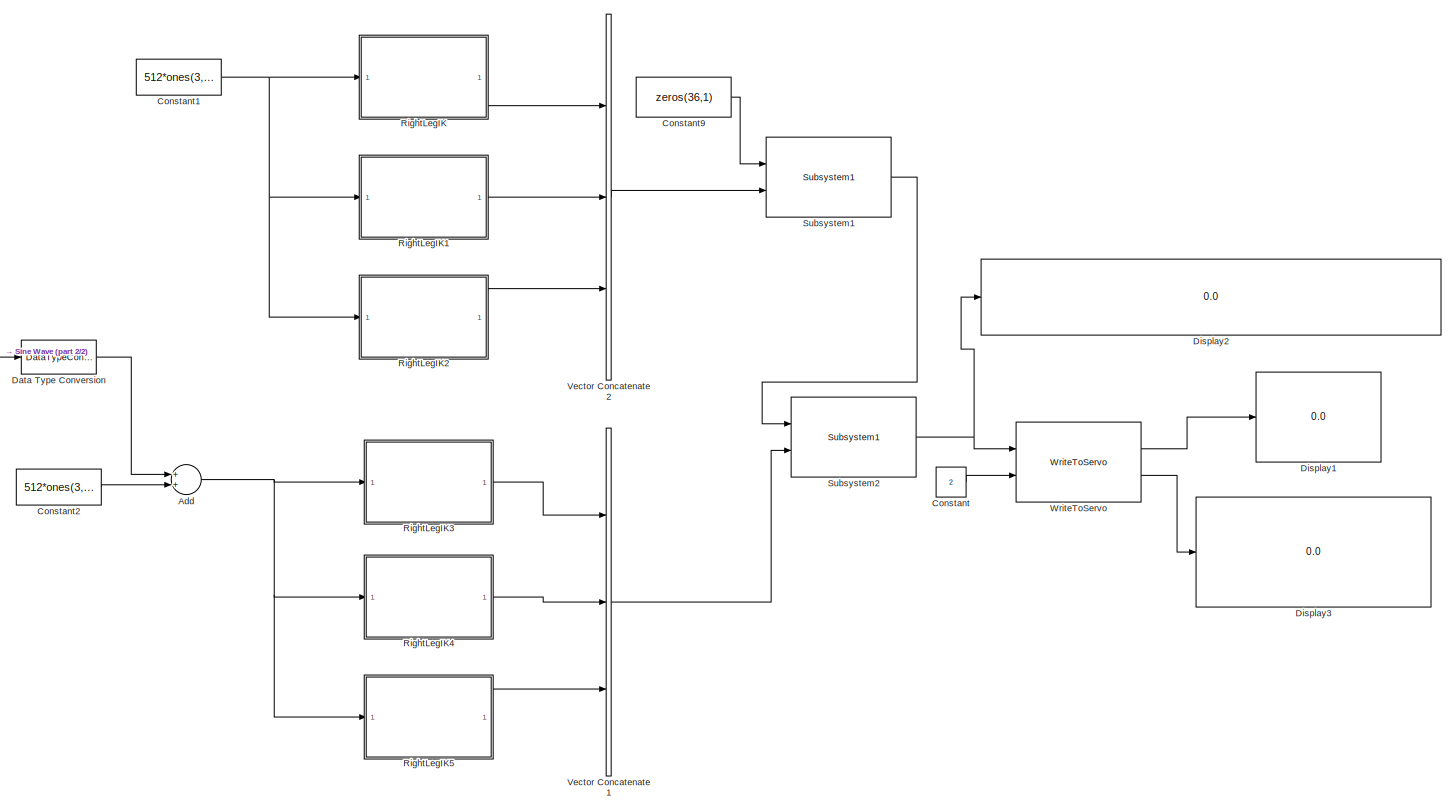
[diagram: root canvas - part 1/2, most of the canvas]
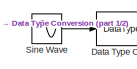
[diagram: root canvas - part 2/2, middle left region]
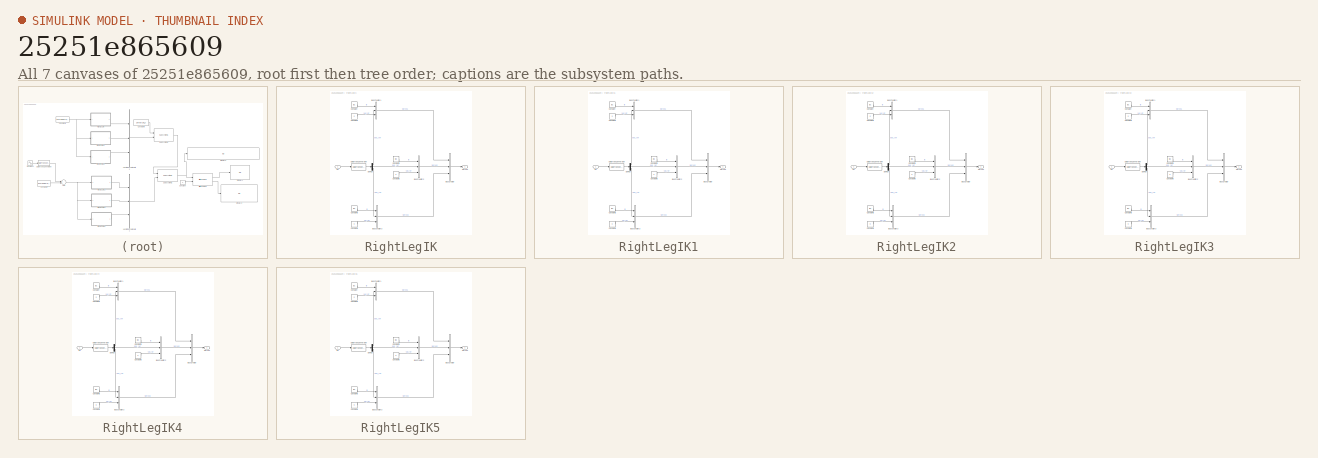
[diagram: thumbnail index - all 7 canvases of the model, root first then tree order]
MODEL slx_25251e865609
KIND model
BLOCK [Sum] Add
  InputSameDT = off
  OutDataTypeStr = Inherit: Inherit via internal rule
  Ports = [2, 1]
  SaturateOnIntegerOverflow = off
BLOCK [Constant] Constant
  OutDataTypeStr = uint8
  Value = 2
BLOCK [Constant] Constant1
  OutDataTypeStr = uint16
  SampleTime = -1
  Value = 512*ones(3,1)
BLOCK [Constant] Constant2
  OutDataTypeStr = uint16
  SampleTime = -1
  Value = 512*ones(3,1)
BLOCK [Constant] Constant9
  OutDataTypeStr = uint8
  SampleTime = -1
  Value = zeros(36,1)
BLOCK [DataTypeConversion] Data Type Conversion
  OutDataTypeStr = uint16
  RndMeth = Floor
  SaturateOnIntegerOverflow = off
BLOCK [Display] Display1
  Decimation = 1
  Format = hex (Stored Integer)
  Ports = [1]
BLOCK [Display] Display2
  Decimation = 1
  Format = hex (Stored Integer)
  Ports = [1]
BLOCK [Display] Display3
  Decimation = 1
  Format = hex (Stored Integer)
  Ports = [1]
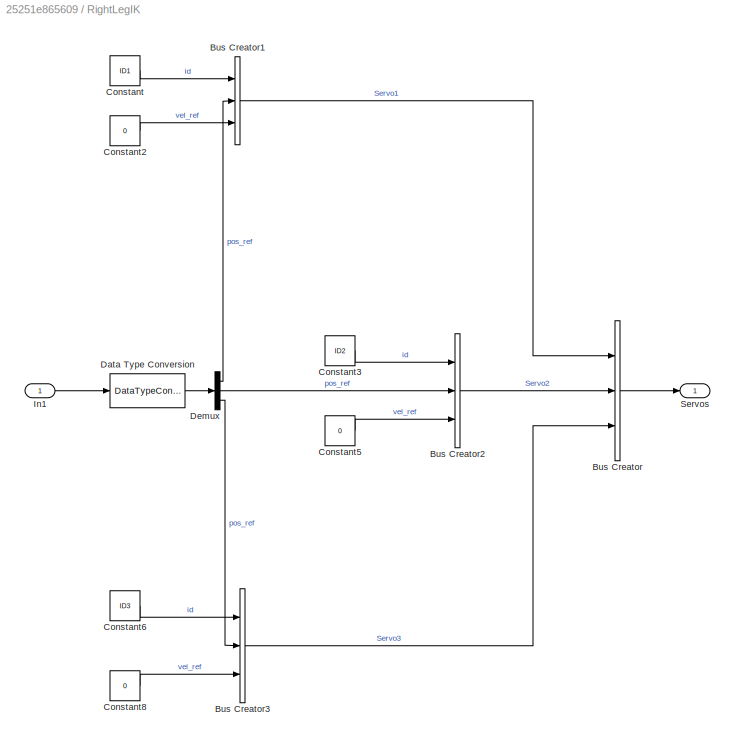
BLOCK [SubSystem] RightLegIK
  Ports = [1, 1]
  RTWFcnName = RightLegIK
  RTWFcnNameOpts = User specified
  RTWSystemCode = Reusable function
  RequestExecContextInheritance = off
  TreatAsAtomicUnit = on
BLOCK [BusCreator] RightLegIK/Bus Creator
  DisplayOption = bar
  InheritFromInputs = off
  Inputs = 3
  NonVirtualBus = on
  OutDataTypeStr = Bus: Leg_ref
  Ports = [3, 1]
BLOCK [BusCreator] RightLegIK/Bus Creator1
  DisplayOption = bar
  InheritFromInputs = off
  Inputs = 3
  NonVirtualBus = on
  OutDataTypeStr = Bus: Servo
  Ports = [3, 1]
BLOCK [BusCreator] RightLegIK/Bus Creator2
  DisplayOption = bar
  InheritFromInputs = off
  Inputs = 3
  NonVirtualBus = on
  OutDataTypeStr = Bus: Servo
  Ports = [3, 1]
BLOCK [BusCreator] RightLegIK/Bus Creator3
  DisplayOption = bar
  InheritFromInputs = off
  Inputs = 3
  NonVirtualBus = on
  OutDataTypeStr = Bus: Servo
  Ports = [3, 1]
BLOCK [Constant] RightLegIK/Constant
  OutDataTypeStr = uint8
  SampleTime = -1
  Value = ID1
BLOCK [Constant] RightLegIK/Constant2
  OutDataTypeStr = uint16
  SampleTime = -1
  Value = 0
BLOCK [Constant] RightLegIK/Constant3
  OutDataTypeStr = uint8
  SampleTime = -1
  Value = ID2
BLOCK [Constant] RightLegIK/Constant5
  OutDataTypeStr = uint16
  SampleTime = -1
  Value = 0
BLOCK [Constant] RightLegIK/Constant6
  OutDataTypeStr = uint8
  SampleTime = -1
  Value = ID3
BLOCK [Constant] RightLegIK/Constant8
  OutDataTypeStr = uint16
  SampleTime = -1
  Value = 0
BLOCK [DataTypeConversion] RightLegIK/Data Type Conversion
  OutDataTypeStr = uint16
  RndMeth = Floor
  SaturateOnIntegerOverflow = off
BLOCK [Demux] RightLegIK/Demux
  DisplayOption = bar
  Outputs = 3
  Ports = [1, 3]
BLOCK [Inport] RightLegIK/In1
  IconDisplay = Port number
BLOCK [Outport] RightLegIK/Servos
  IconDisplay = Port number
  OutDataTypeStr = Bus: Leg_ref
  PortDimensions = 3
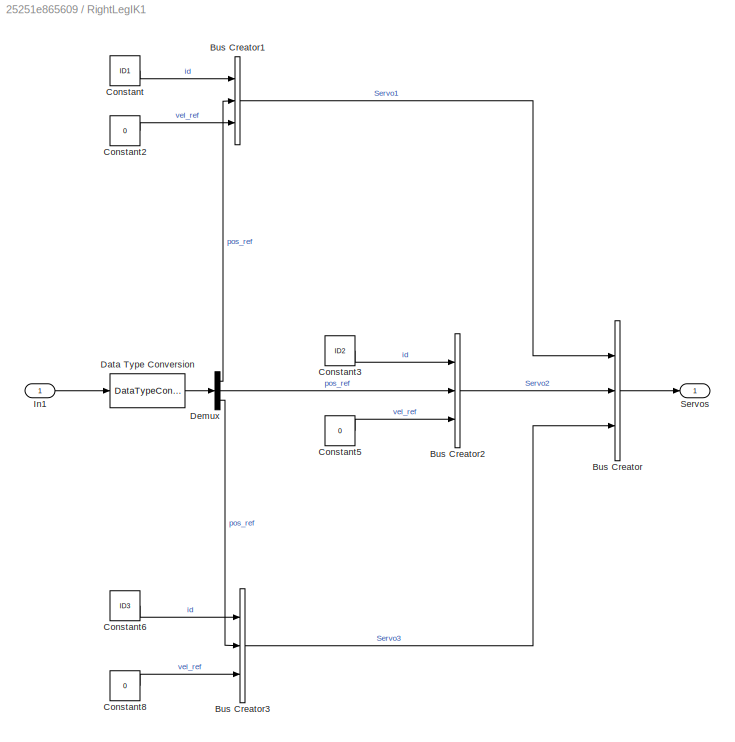
BLOCK [SubSystem] RightLegIK1
  Ports = [1, 1]
  RTWFcnName = RightLegIK
  RTWFcnNameOpts = User specified
  RTWSystemCode = Reusable function
  RequestExecContextInheritance = off
  TreatAsAtomicUnit = on
BLOCK [BusCreator] RightLegIK1/Bus Creator
  DisplayOption = bar
  InheritFromInputs = off
  Inputs = 3
  NonVirtualBus = on
  OutDataTypeStr = Bus: Leg_ref
  Ports = [3, 1]
BLOCK [BusCreator] RightLegIK1/Bus Creator1
  DisplayOption = bar
  InheritFromInputs = off
  Inputs = 3
  NonVirtualBus = on
  OutDataTypeStr = Bus: Servo
  Ports = [3, 1]
BLOCK [BusCreator] RightLegIK1/Bus Creator2
  DisplayOption = bar
  InheritFromInputs = off
  Inputs = 3
  NonVirtualBus = on
  OutDataTypeStr = Bus: Servo
  Ports = [3, 1]
BLOCK [BusCreator] RightLegIK1/Bus Creator3
  DisplayOption = bar
  InheritFromInputs = off
  Inputs = 3
  NonVirtualBus = on
  OutDataTypeStr = Bus: Servo
  Ports = [3, 1]
BLOCK [Constant] RightLegIK1/Constant
  OutDataTypeStr = uint8
  SampleTime = -1
  Value = ID1
BLOCK [Constant] RightLegIK1/Constant2
  OutDataTypeStr = uint16
  SampleTime = -1
  Value = 0
BLOCK [Constant] RightLegIK1/Constant3
  OutDataTypeStr = uint8
  SampleTime = -1
  Value = ID2
BLOCK [Constant] RightLegIK1/Constant5
  OutDataTypeStr = uint16
  SampleTime = -1
  Value = 0
BLOCK [Constant] RightLegIK1/Constant6
  OutDataTypeStr = uint8
  SampleTime = -1
  Value = ID3
BLOCK [Constant] RightLegIK1/Constant8
  OutDataTypeStr = uint16
  SampleTime = -1
  Value = 0
BLOCK [DataTypeConversion] RightLegIK1/Data Type Conversion
  OutDataTypeStr = uint16
  RndMeth = Floor
  SaturateOnIntegerOverflow = off
BLOCK [Demux] RightLegIK1/Demux
  DisplayOption = bar
  Outputs = 3
  Ports = [1, 3]
BLOCK [Inport] RightLegIK1/In1
  IconDisplay = Port number
BLOCK [Outport] RightLegIK1/Servos
  IconDisplay = Port number
  OutDataTypeStr = Bus: Leg_ref
  PortDimensions = 3
BLOCK [SubSystem] RightLegIK2
  Ports = [1, 1]
  RTWFcnName = RightLegIK
  RTWFcnNameOpts = User specified
  RTWSystemCode = Reusable function
  RequestExecContextInheritance = off
  TreatAsAtomicUnit = on
BLOCK [BusCreator] RightLegIK2/Bus Creator
  DisplayOption = bar
  InheritFromInputs = off
  Inputs = 3
  NonVirtualBus = on
  OutDataTypeStr = Bus: Leg_ref
  Ports = [3, 1]
BLOCK [BusCreator] RightLegIK2/Bus Creator1
  DisplayOption = bar
  InheritFromInputs = off
  Inputs = 3
  NonVirtualBus = on
  OutDataTypeStr = Bus: Servo
  Ports = [3, 1]
BLOCK [BusCreator] RightLegIK2/Bus Creator2
  DisplayOption = bar
  InheritFromInputs = off
  Inputs = 3
  NonVirtualBus = on
  OutDataTypeStr = Bus: Servo
  Ports = [3, 1]
BLOCK [BusCreator] RightLegIK2/Bus Creator3
  DisplayOption = bar
  InheritFromInputs = off
  Inputs = 3
  NonVirtualBus = on
  OutDataTypeStr = Bus: Servo
  Ports = [3, 1]
BLOCK [Constant] RightLegIK2/Constant
  OutDataTypeStr = uint8
  SampleTime = -1
  Value = ID1
BLOCK [Constant] RightLegIK2/Constant2
  OutDataTypeStr = uint16
  SampleTime = -1
  Value = 0
BLOCK [Constant] RightLegIK2/Constant3
  OutDataTypeStr = uint8
  SampleTime = -1
  Value = ID2
BLOCK [Constant] RightLegIK2/Constant5
  OutDataTypeStr = uint16
  SampleTime = -1
  Value = 0
BLOCK [Constant] RightLegIK2/Constant6
  OutDataTypeStr = uint8
  SampleTime = -1
  Value = ID3
BLOCK [Constant] RightLegIK2/Constant8
  OutDataTypeStr = uint16
  SampleTime = -1
  Value = 0
BLOCK [DataTypeConversion] RightLegIK2/Data Type Conversion
  OutDataTypeStr = uint16
  RndMeth = Floor
  SaturateOnIntegerOverflow = off
BLOCK [Demux] RightLegIK2/Demux
  DisplayOption = bar
  Outputs = 3
  Ports = [1, 3]
BLOCK [Inport] RightLegIK2/In1
  IconDisplay = Port number
BLOCK [Outport] RightLegIK2/Servos
  IconDisplay = Port number
  OutDataTypeStr = Bus: Leg_ref
  PortDimensions = 3
BLOCK [SubSystem] RightLegIK3
  Ports = [1, 1]
  RTWFcnName = RightLegIK
  RTWFcnNameOpts = User specified
  RTWSystemCode = Reusable function
  RequestExecContextInheritance = off
  TreatAsAtomicUnit = on
BLOCK [BusCreator] RightLegIK3/Bus Creator
  DisplayOption = bar
  InheritFromInputs = off
  Inputs = 3
  NonVirtualBus = on
  OutDataTypeStr = Bus: Leg_ref
  Ports = [3, 1]
BLOCK [BusCreator] RightLegIK3/Bus Creator1
  DisplayOption = bar
  InheritFromInputs = off
  Inputs = 3
  NonVirtualBus = on
  OutDataTypeStr = Bus: Servo
  Ports = [3, 1]
BLOCK [BusCreator] RightLegIK3/Bus Creator2
  DisplayOption = bar
  InheritFromInputs = off
  Inputs = 3
  NonVirtualBus = on
  OutDataTypeStr = Bus: Servo
  Ports = [3, 1]
BLOCK [BusCreator] RightLegIK3/Bus Creator3
  DisplayOption = bar
  InheritFromInputs = off
  Inputs = 3
  NonVirtualBus = on
  OutDataTypeStr = Bus: Servo
  Ports = [3, 1]
BLOCK [Constant] RightLegIK3/Constant
  OutDataTypeStr = uint8
  SampleTime = -1
  Value = ID1
BLOCK [Constant] RightLegIK3/Constant2
  OutDataTypeStr = uint16
  SampleTime = -1
  Value = 0
BLOCK [Constant] RightLegIK3/Constant3
  OutDataTypeStr = uint8
  SampleTime = -1
  Value = ID2
BLOCK [Constant] RightLegIK3/Constant5
  OutDataTypeStr = uint16
  SampleTime = -1
  Value = 0
BLOCK [Constant] RightLegIK3/Constant6
  OutDataTypeStr = uint8
  SampleTime = -1
  Value = ID3
BLOCK [Constant] RightLegIK3/Constant8
  OutDataTypeStr = uint16
  SampleTime = -1
  Value = 0
BLOCK [DataTypeConversion] RightLegIK3/Data Type Conversion
  OutDataTypeStr = uint16
  RndMeth = Floor
  SaturateOnIntegerOverflow = off
BLOCK [Demux] RightLegIK3/Demux
  DisplayOption = bar
  Outputs = 3
  Ports = [1, 3]
BLOCK [Inport] RightLegIK3/In1
  IconDisplay = Port number
BLOCK [Outport] RightLegIK3/Servos
  IconDisplay = Port number
  OutDataTypeStr = Bus: Leg_ref
  PortDimensions = 3
BLOCK [SubSystem] RightLegIK4
  Ports = [1, 1]
  RTWFcnName = RightLegIK
  RTWFcnNameOpts = User specified
  RTWSystemCode = Reusable function
  RequestExecContextInheritance = off
  TreatAsAtomicUnit = on
BLOCK [BusCreator] RightLegIK4/Bus Creator
  DisplayOption = bar
  InheritFromInputs = off
  Inputs = 3
  NonVirtualBus = on
  OutDataTypeStr = Bus: Leg_ref
  Ports = [3, 1]
BLOCK [BusCreator] RightLegIK4/Bus Creator1
  DisplayOption = bar
  InheritFromInputs = off
  Inputs = 3
  NonVirtualBus = on
  OutDataTypeStr = Bus: Servo
  Ports = [3, 1]
BLOCK [BusCreator] RightLegIK4/Bus Creator2
  DisplayOption = bar
  InheritFromInputs = off
  Inputs = 3
  NonVirtualBus = on
  OutDataTypeStr = Bus: Servo
  Ports = [3, 1]
BLOCK [BusCreator] RightLegIK4/Bus Creator3
  DisplayOption = bar
  InheritFromInputs = off
  Inputs = 3
  NonVirtualBus = on
  OutDataTypeStr = Bus: Servo
  Ports = [3, 1]
BLOCK [Constant] RightLegIK4/Constant
  OutDataTypeStr = uint8
  SampleTime = -1
  Value = ID1
BLOCK [Constant] RightLegIK4/Constant2
  OutDataTypeStr = uint16
  SampleTime = -1
  Value = 0
BLOCK [Constant] RightLegIK4/Constant3
  OutDataTypeStr = uint8
  SampleTime = -1
  Value = ID2
BLOCK [Constant] RightLegIK4/Constant5
  OutDataTypeStr = uint16
  SampleTime = -1
  Value = 0
BLOCK [Constant] RightLegIK4/Constant6
  OutDataTypeStr = uint8
  SampleTime = -1
  Value = ID3
BLOCK [Constant] RightLegIK4/Constant8
  OutDataTypeStr = uint16
  SampleTime = -1
  Value = 0
BLOCK [DataTypeConversion] RightLegIK4/Data Type Conversion
  OutDataTypeStr = uint16
  RndMeth = Floor
  SaturateOnIntegerOverflow = off
BLOCK [Demux] RightLegIK4/Demux
  DisplayOption = bar
  Outputs = 3
  Ports = [1, 3]
BLOCK [Inport] RightLegIK4/In1
  IconDisplay = Port number
BLOCK [Outport] RightLegIK4/Servos
  IconDisplay = Port number
  OutDataTypeStr = Bus: Leg_ref
  PortDimensions = 3
BLOCK [SubSystem] RightLegIK5
  Ports = [1, 1]
  RTWFcnName = RightLegIK
  RTWFcnNameOpts = User specified
  RTWSystemCode = Reusable function
  RequestExecContextInheritance = off
  TreatAsAtomicUnit = on
BLOCK [BusCreator] RightLegIK5/Bus Creator
  DisplayOption = bar
  InheritFromInputs = off
  Inputs = 3
  NonVirtualBus = on
  OutDataTypeStr = Bus: Leg_ref
  Ports = [3, 1]
BLOCK [BusCreator] RightLegIK5/Bus Creator1
  DisplayOption = bar
  InheritFromInputs = off
  Inputs = 3
  NonVirtualBus = on
  OutDataTypeStr = Bus: Servo
  Ports = [3, 1]
BLOCK [BusCreator] RightLegIK5/Bus Creator2
  DisplayOption = bar
  InheritFromInputs = off
  Inputs = 3
  NonVirtualBus = on
  OutDataTypeStr = Bus: Servo
  Ports = [3, 1]
BLOCK [BusCreator] RightLegIK5/Bus Creator3
  DisplayOption = bar
  InheritFromInputs = off
  Inputs = 3
  NonVirtualBus = on
  OutDataTypeStr = Bus: Servo
  Ports = [3, 1]
BLOCK [Constant] RightLegIK5/Constant
  OutDataTypeStr = uint8
  SampleTime = -1
  Value = ID1
BLOCK [Constant] RightLegIK5/Constant2
  OutDataTypeStr = uint16
  SampleTime = -1
  Value = 0
BLOCK [Constant] RightLegIK5/Constant3
  OutDataTypeStr = uint8
  SampleTime = -1
  Value = ID2
BLOCK [Constant] RightLegIK5/Constant5
  OutDataTypeStr = uint16
  SampleTime = -1
  Value = 0
BLOCK [Constant] RightLegIK5/Constant6
  OutDataTypeStr = uint8
  SampleTime = -1
  Value = ID3
BLOCK [Constant] RightLegIK5/Constant8
  OutDataTypeStr = uint16
  SampleTime = -1
  Value = 0
BLOCK [DataTypeConversion] RightLegIK5/Data Type Conversion
  OutDataTypeStr = uint16
  RndMeth = Floor
  SaturateOnIntegerOverflow = off
BLOCK [Demux] RightLegIK5/Demux
  DisplayOption = bar
  Outputs = 3
  Ports = [1, 3]
BLOCK [Inport] RightLegIK5/In1
  IconDisplay = Port number
BLOCK [Outport] RightLegIK5/Servos
  IconDisplay = Port number
  OutDataTypeStr = Bus: Leg_ref
  PortDimensions = 3
BLOCK [Sin] Sine Wave
  Amplitude = 100
  Frequency = 3
  Ports = [0, 1]
  SampleTime = 0.05
BLOCK [Reference] Subsystem1  REF=ServoCommand/Subsystem1
  Ports = [2, 1]
  SourceBlock = ServoCommand/Subsystem1
  SourceType = SubSystem
BLOCK [Reference] Subsystem2  REF=ServoCommand/Subsystem1
  Ports = [2, 1]
  SourceBlock = ServoCommand/Subsystem1
  SourceType = SubSystem
BLOCK [Concatenate] Vector Concatenate1
  ConcatenateDimension = 2
  NumInputs = 3
  Ports = [3, 1]
BLOCK [Concatenate] Vector Concatenate2
  ConcatenateDimension = 2
  NumInputs = 3
  Ports = [3, 1]
BLOCK [Reference] WriteToServo  REF=BeagleBoneBlackCom/WriteToServo
  Ports = [2, 2]
  SourceBlock = BeagleBoneBlackCom/WriteToServo
  SourceType = SubSystem
NET Add:1 -> RightLegIK3:1, RightLegIK4:1, RightLegIK5:1
NET Constant1:1 -> RightLegIK1:1, RightLegIK2:1, RightLegIK:1
LINE Constant2:1 -> Add:2
LINE Constant9:1 -> Subsystem1:1
LINE Constant:1 -> WriteToServo:2
LINE Data Type Conversion:1 -> Add:1
LINE RightLegIK/Bus Creator1:1 -> RightLegIK/Bus Creator:1
LINE RightLegIK/Bus Creator2:1 -> RightLegIK/Bus Creator:2
LINE RightLegIK/Bus Creator3:1 -> RightLegIK/Bus Creator:3
LINE RightLegIK/Bus Creator:1 -> RightLegIK/Servos:1
LINE RightLegIK/Constant2:1 -> RightLegIK/Bus Creator1:3
LINE RightLegIK/Constant3:1 -> RightLegIK/Bus Creator2:1
LINE RightLegIK/Constant5:1 -> RightLegIK/Bus Creator2:3
LINE RightLegIK/Constant6:1 -> RightLegIK/Bus Creator3:1
LINE RightLegIK/Constant8:1 -> RightLegIK/Bus Creator3:3
LINE RightLegIK/Constant:1 -> RightLegIK/Bus Creator1:1
LINE RightLegIK/Data Type Conversion:1 -> RightLegIK/Demux:1
LINE RightLegIK/Demux:1 -> RightLegIK/Bus Creator1:2
LINE RightLegIK/Demux:2 -> RightLegIK/Bus Creator2:2
LINE RightLegIK/Demux:3 -> RightLegIK/Bus Creator3:2
LINE RightLegIK/In1:1 -> RightLegIK/Data Type Conversion:1
LINE RightLegIK1/Bus Creator1:1 -> RightLegIK1/Bus Creator:1
LINE RightLegIK1/Bus Creator2:1 -> RightLegIK1/Bus Creator:2
LINE RightLegIK1/Bus Creator3:1 -> RightLegIK1/Bus Creator:3
LINE RightLegIK1/Bus Creator:1 -> RightLegIK1/Servos:1
LINE RightLegIK1/Constant2:1 -> RightLegIK1/Bus Creator1:3
LINE RightLegIK1/Constant3:1 -> RightLegIK1/Bus Creator2:1
LINE RightLegIK1/Constant5:1 -> RightLegIK1/Bus Creator2:3
LINE RightLegIK1/Constant6:1 -> RightLegIK1/Bus Creator3:1
LINE RightLegIK1/Constant8:1 -> RightLegIK1/Bus Creator3:3
LINE RightLegIK1/Constant:1 -> RightLegIK1/Bus Creator1:1
LINE RightLegIK1/Data Type Conversion:1 -> RightLegIK1/Demux:1
LINE RightLegIK1/Demux:1 -> RightLegIK1/Bus Creator1:2
LINE RightLegIK1/Demux:2 -> RightLegIK1/Bus Creator2:2
LINE RightLegIK1/Demux:3 -> RightLegIK1/Bus Creator3:2
LINE RightLegIK1/In1:1 -> RightLegIK1/Data Type Conversion:1
LINE RightLegIK1:1 -> Vector Concatenate2:2
LINE RightLegIK2/Bus Creator1:1 -> RightLegIK2/Bus Creator:1
LINE RightLegIK2/Bus Creator2:1 -> RightLegIK2/Bus Creator:2
LINE RightLegIK2/Bus Creator3:1 -> RightLegIK2/Bus Creator:3
LINE RightLegIK2/Bus Creator:1 -> RightLegIK2/Servos:1
LINE RightLegIK2/Constant2:1 -> RightLegIK2/Bus Creator1:3
LINE RightLegIK2/Constant3:1 -> RightLegIK2/Bus Creator2:1
LINE RightLegIK2/Constant5:1 -> RightLegIK2/Bus Creator2:3
LINE RightLegIK2/Constant6:1 -> RightLegIK2/Bus Creator3:1
LINE RightLegIK2/Constant8:1 -> RightLegIK2/Bus Creator3:3
LINE RightLegIK2/Constant:1 -> RightLegIK2/Bus Creator1:1
LINE RightLegIK2/Data Type Conversion:1 -> RightLegIK2/Demux:1
LINE RightLegIK2/Demux:1 -> RightLegIK2/Bus Creator1:2
LINE RightLegIK2/Demux:2 -> RightLegIK2/Bus Creator2:2
LINE RightLegIK2/Demux:3 -> RightLegIK2/Bus Creator3:2
LINE RightLegIK2/In1:1 -> RightLegIK2/Data Type Conversion:1
LINE RightLegIK2:1 -> Vector Concatenate2:3
LINE RightLegIK3/Bus Creator1:1 -> RightLegIK3/Bus Creator:1
LINE RightLegIK3/Bus Creator2:1 -> RightLegIK3/Bus Creator:2
LINE RightLegIK3/Bus Creator3:1 -> RightLegIK3/Bus Creator:3
LINE RightLegIK3/Bus Creator:1 -> RightLegIK3/Servos:1
LINE RightLegIK3/Constant2:1 -> RightLegIK3/Bus Creator1:3
LINE RightLegIK3/Constant3:1 -> RightLegIK3/Bus Creator2:1
LINE RightLegIK3/Constant5:1 -> RightLegIK3/Bus Creator2:3
LINE RightLegIK3/Constant6:1 -> RightLegIK3/Bus Creator3:1
LINE RightLegIK3/Constant8:1 -> RightLegIK3/Bus Creator3:3
LINE RightLegIK3/Constant:1 -> RightLegIK3/Bus Creator1:1
LINE RightLegIK3/Data Type Conversion:1 -> RightLegIK3/Demux:1
LINE RightLegIK3/Demux:1 -> RightLegIK3/Bus Creator1:2
LINE RightLegIK3/Demux:2 -> RightLegIK3/Bus Creator2:2
LINE RightLegIK3/Demux:3 -> RightLegIK3/Bus Creator3:2
LINE RightLegIK3/In1:1 -> RightLegIK3/Data Type Conversion:1
LINE RightLegIK3:1 -> Vector Concatenate1:1
LINE RightLegIK4/Bus Creator1:1 -> RightLegIK4/Bus Creator:1
LINE RightLegIK4/Bus Creator2:1 -> RightLegIK4/Bus Creator:2
LINE RightLegIK4/Bus Creator3:1 -> RightLegIK4/Bus Creator:3
LINE RightLegIK4/Bus Creator:1 -> RightLegIK4/Servos:1
LINE RightLegIK4/Constant2:1 -> RightLegIK4/Bus Creator1:3
LINE RightLegIK4/Constant3:1 -> RightLegIK4/Bus Creator2:1
LINE RightLegIK4/Constant5:1 -> RightLegIK4/Bus Creator2:3
LINE RightLegIK4/Constant6:1 -> RightLegIK4/Bus Creator3:1
LINE RightLegIK4/Constant8:1 -> RightLegIK4/Bus Creator3:3
LINE RightLegIK4/Constant:1 -> RightLegIK4/Bus Creator1:1
LINE RightLegIK4/Data Type Conversion:1 -> RightLegIK4/Demux:1
LINE RightLegIK4/Demux:1 -> RightLegIK4/Bus Creator1:2
LINE RightLegIK4/Demux:2 -> RightLegIK4/Bus Creator2:2
LINE RightLegIK4/Demux:3 -> RightLegIK4/Bus Creator3:2
LINE RightLegIK4/In1:1 -> RightLegIK4/Data Type Conversion:1
LINE RightLegIK4:1 -> Vector Concatenate1:2
LINE RightLegIK5/Bus Creator1:1 -> RightLegIK5/Bus Creator:1
LINE RightLegIK5/Bus Creator2:1 -> RightLegIK5/Bus Creator:2
LINE RightLegIK5/Bus Creator3:1 -> RightLegIK5/Bus Creator:3
LINE RightLegIK5/Bus Creator:1 -> RightLegIK5/Servos:1
LINE RightLegIK5/Constant2:1 -> RightLegIK5/Bus Creator1:3
LINE RightLegIK5/Constant3:1 -> RightLegIK5/Bus Creator2:1
LINE RightLegIK5/Constant5:1 -> RightLegIK5/Bus Creator2:3
LINE RightLegIK5/Constant6:1 -> RightLegIK5/Bus Creator3:1
LINE RightLegIK5/Constant8:1 -> RightLegIK5/Bus Creator3:3
LINE RightLegIK5/Constant:1 -> RightLegIK5/Bus Creator1:1
LINE RightLegIK5/Data Type Conversion:1 -> RightLegIK5/Demux:1
LINE RightLegIK5/Demux:1 -> RightLegIK5/Bus Creator1:2
LINE RightLegIK5/Demux:2 -> RightLegIK5/Bus Creator2:2
LINE RightLegIK5/Demux:3 -> RightLegIK5/Bus Creator3:2
LINE RightLegIK5/In1:1 -> RightLegIK5/Data Type Conversion:1
LINE RightLegIK5:1 -> Vector Concatenate1:3
LINE RightLegIK:1 -> Vector Concatenate2:1
LINE Sine Wave:1 -> Data Type Conversion:1
LINE Subsystem1:1 -> Subsystem2:1
NET Subsystem2:1 -> Display2:1, WriteToServo:1
LINE Vector Concatenate1:1 -> Subsystem2:2
LINE Vector Concatenate2:1 -> Subsystem1:2
LINE WriteToServo:1 -> Display1:1
LINE WriteToServo:2 -> Display3:1
note: NET lines group one-source signal fan-out (src -> all destinations, sorted); 1:1 wires keep LINE
